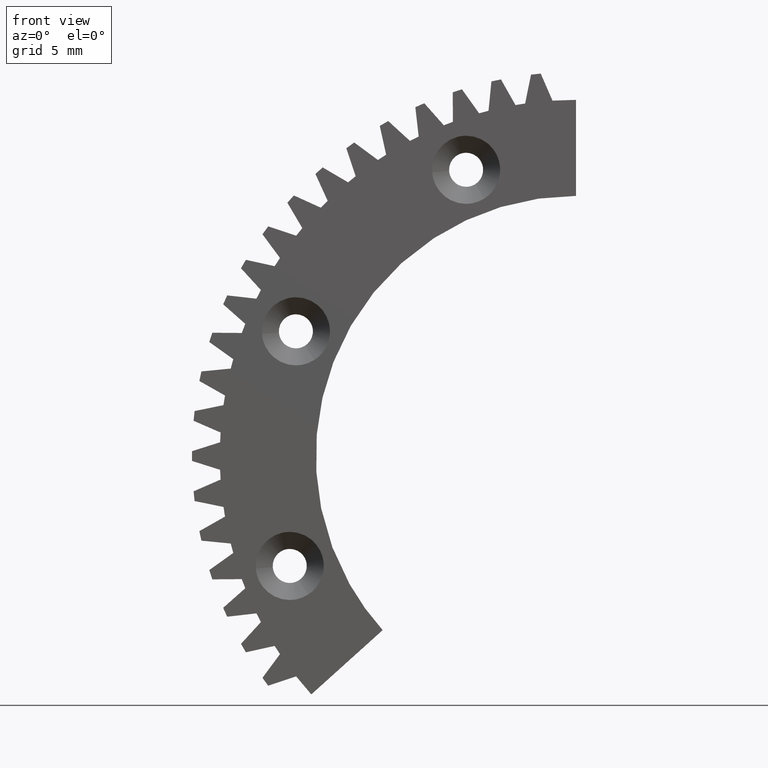
[diagram: clean part render]
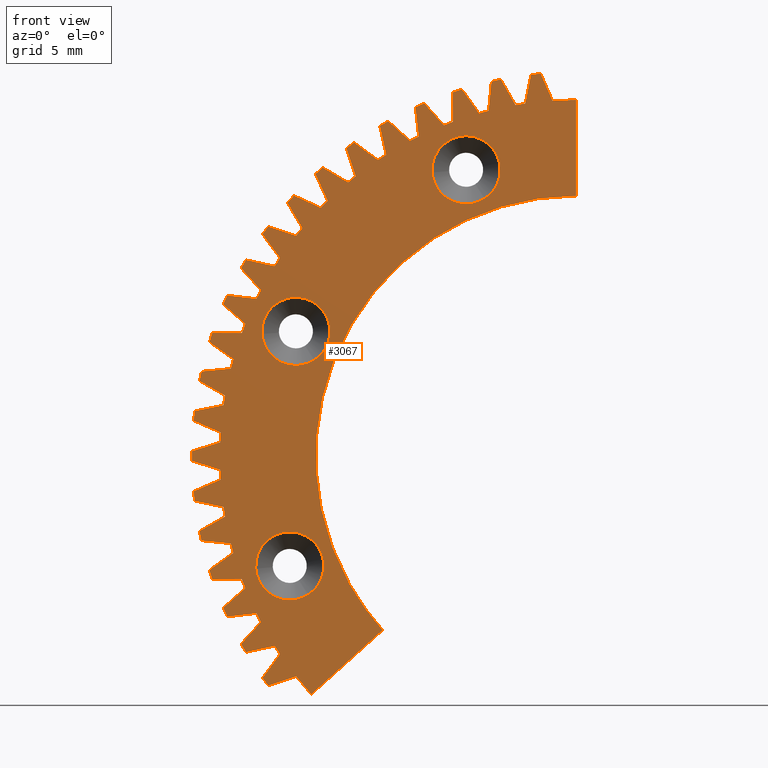
[diagram: same view with one face highlighted and labeled with its STEP entity id]
A machine part, front view. The second image highlights one B-rep face of the part: STEP entity #3067.
In plain terms, the highlighted face is a freeform B-spline surface patch.
Its self-contained STEP definition (entity closure, byte-faithful):
#85=CARTESIAN_POINT('',(-17.301544010435251,-3.000000000001895,-28.750436031383401));
#86=VERTEX_POINT('',#85);
#92=CARTESIAN_POINT('',(-18.484815756047350,-3.0,-24.695747923898900));
#93=VERTEX_POINT('',#92);
#94=CARTESIAN_POINT('',(-18.484815756047350,-3.0,-24.695747923898900));
#95=CARTESIAN_POINT('',(-16.284815756047355,-3.0,-24.695747923898892));
#96=CARTESIAN_POINT('',(-16.284815756047351,-3.0,-26.895747923898899));
#97=CARTESIAN_POINT('',(-16.284815756047347,-3.000000000000000,-28.101773967085858));
#98=CARTESIAN_POINT('',(-17.301544010435251,-3.000000000001895,-28.750436031383398));
#106=(BOUNDED_CURVE()B_SPLINE_CURVE(2,(#94,#95,#96,#97,#98),.UNSPECIFIED.,.F.,.U.)B_SPLINE_CURVE_WITH_KNOTS((3,2,3),(0.0,0.250000000000000,0.407950112622724),.UNSPECIFIED.)CURVE()GEOMETRIC_REPRESENTATION_ITEM()RATIONAL_B_SPLINE_CURVE((1.0,0.707106781186548,1.0,0.814949932407933,0.863729296951943))REPRESENTATION_ITEM(''));
#107=EDGE_CURVE('',#93,#86,#106,.T.);
#109=CARTESIAN_POINT('',(-20.678033890272040,-3.000000000029468,-27.068357934725690));
#110=VERTEX_POINT('',#109);
#111=CARTESIAN_POINT('',(-20.678033890272051,-3.000000000029467,-27.068357934725690));
#112=CARTESIAN_POINT('',(-20.684815756047357,-3.000000000000001,-26.982186159540024));
#113=CARTESIAN_POINT('',(-20.684815756047350,-3.0,-26.895747923898899));
#114=CARTESIAN_POINT('',(-20.684815756047357,-3.0,-24.695747923898892));
#115=CARTESIAN_POINT('',(-18.484815756047350,-3.0,-24.695747923898900));
#123=(BOUNDED_CURVE()B_SPLINE_CURVE(2,(#111,#112,#113,#114,#115),.UNSPECIFIED.,.F.,.U.)B_SPLINE_CURVE_WITH_KNOTS((3,2,3),(0.736331300597873,0.750000000000000,1.0),.UNSPECIFIED.)CURVE()GEOMETRIC_REPRESENTATION_ITEM()RATIONAL_B_SPLINE_CURVE((0.969723356098994,0.983986122540469,1.0,0.707106781186548,1.0))REPRESENTATION_ITEM(''));
#124=EDGE_CURVE('',#110,#93,#123,.T.);
#228=CARTESIAN_POINT('',(-18.484815756047350,-3.0,-29.095747923898902));
#229=VERTEX_POINT('',#228);
#230=CARTESIAN_POINT('',(-18.484815756047350,-3.0,-29.095747923898902));
#231=CARTESIAN_POINT('',(-20.518474837280163,-3.000000000000000,-29.095747923898902));
#232=CARTESIAN_POINT('',(-20.678033890272040,-3.000000000029467,-27.068357934725693));
#240=(BOUNDED_CURVE()B_SPLINE_CURVE(2,(#230,#231,#232),.UNSPECIFIED.,.F.,.U.)B_SPLINE_CURVE_WITH_KNOTS((3,3),(0.500000000000000,0.736331300597872),.UNSPECIFIED.)CURVE()GEOMETRIC_REPRESENTATION_ITEM()RATIONAL_B_SPLINE_CURVE((1.0,0.723120658646079,0.969723356098992))REPRESENTATION_ITEM(''));
#241=EDGE_CURVE('',#229,#110,#240,.T.);
#243=CARTESIAN_POINT('',(-17.301544010435251,-3.000000000001895,-28.750436031383398));
#244=CARTESIAN_POINT('',(-17.842794034175078,-3.0,-29.095747923898909));
#245=CARTESIAN_POINT('',(-18.484815756047350,-3.0,-29.095747923898902));
#253=(BOUNDED_CURVE()B_SPLINE_CURVE(2,(#243,#244,#245),.UNSPECIFIED.,.F.,.U.)B_SPLINE_CURVE_WITH_KNOTS((3,3),(0.407950112622724,0.500000000000000),.UNSPECIFIED.)CURVE()GEOMETRIC_REPRESENTATION_ITEM()RATIONAL_B_SPLINE_CURVE((0.863729296951943,0.892156848778615,1.0))REPRESENTATION_ITEM(''));
#254=EDGE_CURVE('',#86,#229,#253,.T.);
#429=CARTESIAN_POINT('',(-16.904899751990499,-3.000000000001896,-13.601354235410760));
#430=VERTEX_POINT('',#429);
#436=CARTESIAN_POINT('',(-18.088171497602598,-3.0,-9.546666127926260));
#437=VERTEX_POINT('',#436);
#438=CARTESIAN_POINT('',(-18.088171497602598,-3.0,-9.546666127926260));
#439=CARTESIAN_POINT('',(-15.888171497602595,-3.0,-9.546666127926260));
#440=CARTESIAN_POINT('',(-15.888171497602601,-3.0,-11.746666127926259));
#441=CARTESIAN_POINT('',(-15.888171497602601,-3.000000000000000,-12.952692171113224));
#442=CARTESIAN_POINT('',(-16.904899751990499,-3.000000000001897,-13.601354235410756));
#450=(BOUNDED_CURVE()B_SPLINE_CURVE(2,(#438,#439,#440,#441,#442),.UNSPECIFIED.,.F.,.U.)B_SPLINE_CURVE_WITH_KNOTS((3,2,3),(0.0,0.250000000000000,0.407950112622724),.UNSPECIFIED.)CURVE()GEOMETRIC_REPRESENTATION_ITEM()RATIONAL_B_SPLINE_CURVE((1.0,0.707106781186548,1.0,0.814949932407933,0.863729296951943))REPRESENTATION_ITEM(''));
#451=EDGE_CURVE('',#437,#430,#450,.T.);
#453=CARTESIAN_POINT('',(-20.281389631827292,-3.000000000029469,-11.919276138753050));
#454=VERTEX_POINT('',#453);
#455=CARTESIAN_POINT('',(-20.281389631827285,-3.000000000029469,-11.919276138753052));
#456=CARTESIAN_POINT('',(-20.288171497602601,-3.000000000000000,-11.833104363567392));
#457=CARTESIAN_POINT('',(-20.288171497602601,-3.0,-11.746666127926259));
#458=CARTESIAN_POINT('',(-20.288171497602598,-3.0,-9.546666127926260));
#459=CARTESIAN_POINT('',(-18.088171497602598,-3.0,-9.546666127926260));
#467=(BOUNDED_CURVE()B_SPLINE_CURVE(2,(#455,#456,#457,#458,#459),.UNSPECIFIED.,.F.,.U.)B_SPLINE_CURVE_WITH_KNOTS((3,2,3),(0.736331300597873,0.750000000000000,1.0),.UNSPECIFIED.)CURVE()GEOMETRIC_REPRESENTATION_ITEM()RATIONAL_B_SPLINE_CURVE((0.969723356098994,0.983986122540470,1.0,0.707106781186548,1.0))REPRESENTATION_ITEM(''));
#468=EDGE_CURVE('',#454,#437,#467,.T.);
#572=CARTESIAN_POINT('',(-18.088171497602598,-3.0,-13.946666127926260));
#573=VERTEX_POINT('',#572);
#574=CARTESIAN_POINT('',(-18.088171497602598,-3.0,-13.946666127926260));
#575=CARTESIAN_POINT('',(-20.121830578835404,-3.000000000000000,-13.946666127926262));
#576=CARTESIAN_POINT('',(-20.281389631827292,-3.000000000029468,-11.919276138753048));
#584=(BOUNDED_CURVE()B_SPLINE_CURVE(2,(#574,#575,#576),.UNSPECIFIED.,.F.,.U.)B_SPLINE_CURVE_WITH_KNOTS((3,3),(0.500000000000000,0.736331300597872),.UNSPECIFIED.)CURVE()GEOMETRIC_REPRESENTATION_ITEM()RATIONAL_B_SPLINE_CURVE((1.0,0.723120658646079,0.969723356098992))REPRESENTATION_ITEM(''));
#585=EDGE_CURVE('',#573,#454,#584,.T.);
#587=CARTESIAN_POINT('',(-16.904899751990499,-3.000000000001897,-13.601354235410756));
#588=CARTESIAN_POINT('',(-17.446149775730326,-3.000000000000001,-13.946666127926269));
#589=CARTESIAN_POINT('',(-18.088171497602598,-3.0,-13.946666127926260));
#597=(BOUNDED_CURVE()B_SPLINE_CURVE(2,(#587,#588,#589),.UNSPECIFIED.,.F.,.U.)B_SPLINE_CURVE_WITH_KNOTS((3,3),(0.407950112622724,0.500000000000000),.UNSPECIFIED.)CURVE()GEOMETRIC_REPRESENTATION_ITEM()RATIONAL_B_SPLINE_CURVE((0.863729296951943,0.892156848778615,1.0))REPRESENTATION_ITEM(''));
#598=EDGE_CURVE('',#430,#573,#597,.T.);
#773=CARTESIAN_POINT('',(-5.912411440443520,-3.000000000001896,-3.169805613593854));
#774=VERTEX_POINT('',#773);
#780=CARTESIAN_POINT('',(-7.095683186055621,-3.0,0.884882493890644));
#781=VERTEX_POINT('',#780);
#782=CARTESIAN_POINT('',(-7.095683186055621,-3.0,0.884882493890644));
#783=CARTESIAN_POINT('',(-4.895683186055620,-3.0,0.884882493890644));
#784=CARTESIAN_POINT('',(-4.895683186055620,-3.0,-1.315117506109356));
#785=CARTESIAN_POINT('',(-4.895683186055621,-3.000000000000000,-2.521143549296317));
#786=CARTESIAN_POINT('',(-5.912411440443520,-3.000000000001897,-3.169805613593855));
#794=(BOUNDED_CURVE()B_SPLINE_CURVE(2,(#782,#783,#784,#785,#786),.UNSPECIFIED.,.F.,.U.)B_SPLINE_CURVE_WITH_KNOTS((3,2,3),(0.0,0.250000000000000,0.407950112622724),.UNSPECIFIED.)CURVE()GEOMETRIC_REPRESENTATION_ITEM()RATIONAL_B_SPLINE_CURVE((1.0,0.707106781186548,1.0,0.814949932407933,0.863729296951943))REPRESENTATION_ITEM(''));
#795=EDGE_CURVE('',#781,#774,#794,.T.);
#797=CARTESIAN_POINT('',(-9.288901320280310,-3.000000000029469,-1.487727516936148));
#798=VERTEX_POINT('',#797);
#799=CARTESIAN_POINT('',(-9.288901320280310,-3.000000000029469,-1.487727516936148));
#800=CARTESIAN_POINT('',(-9.295683186055621,-3.0,-1.401555741750485));
#801=CARTESIAN_POINT('',(-9.295683186055621,-3.0,-1.315117506109356));
#802=CARTESIAN_POINT('',(-9.295683186055621,-3.0,0.884882493890644));
#803=CARTESIAN_POINT('',(-7.095683186055621,-3.0,0.884882493890644));
#811=(BOUNDED_CURVE()B_SPLINE_CURVE(2,(#799,#800,#801,#802,#803),.UNSPECIFIED.,.F.,.U.)B_SPLINE_CURVE_WITH_KNOTS((3,2,3),(0.736331300597873,0.750000000000000,1.0),.UNSPECIFIED.)CURVE()GEOMETRIC_REPRESENTATION_ITEM()RATIONAL_B_SPLINE_CURVE((0.969723356098994,0.983986122540470,1.0,0.707106781186548,1.0))REPRESENTATION_ITEM(''));
#812=EDGE_CURVE('',#798,#781,#811,.T.);
#916=CARTESIAN_POINT('',(-7.095683186055621,-3.0,-3.515117506109356));
#917=VERTEX_POINT('',#916);
#918=CARTESIAN_POINT('',(-7.095683186055621,-3.0,-3.515117506109356));
#919=CARTESIAN_POINT('',(-9.129342267288426,-3.000000000000000,-3.515117506109356));
#920=CARTESIAN_POINT('',(-9.288901320280310,-3.000000000029468,-1.487727516936148));
#928=(BOUNDED_CURVE()B_SPLINE_CURVE(2,(#918,#919,#920),.UNSPECIFIED.,.F.,.U.)B_SPLINE_CURVE_WITH_KNOTS((3,3),(0.500000000000000,0.736331300597872),.UNSPECIFIED.)CURVE()GEOMETRIC_REPRESENTATION_ITEM()RATIONAL_B_SPLINE_CURVE((1.0,0.723120658646079,0.969723356098992))REPRESENTATION_ITEM(''));
#929=EDGE_CURVE('',#917,#798,#928,.T.);
#931=CARTESIAN_POINT('',(-5.912411440443520,-3.000000000001897,-3.169805613593855));
#932=CARTESIAN_POINT('',(-6.453661464183351,-3.000000000000000,-3.515117506109357));
#933=CARTESIAN_POINT('',(-7.095683186055621,-3.0,-3.515117506109356));
#941=(BOUNDED_CURVE()B_SPLINE_CURVE(2,(#931,#932,#933),.UNSPECIFIED.,.F.,.U.)B_SPLINE_CURVE_WITH_KNOTS((3,3),(0.407950112622724,0.500000000000000),.UNSPECIFIED.)CURVE()GEOMETRIC_REPRESENTATION_ITEM()RATIONAL_B_SPLINE_CURVE((0.863729296951943,0.892156848778615,1.0))REPRESENTATION_ITEM(''));
#942=EDGE_CURVE('',#774,#917,#941,.T.);
#2072=CARTESIAN_POINT('',(-26.038757181996029,-3.0,6.897333916763474));
#2073=CARTESIAN_POINT('',(1.238760485344445,-3.0,6.897333916763474));
#2074=CARTESIAN_POINT('',(-26.038757181996029,-3.0,-37.192251966026468));
#2075=CARTESIAN_POINT('',(1.238760485344445,-3.0,-37.192251966026468));
#2076=B_SPLINE_SURFACE_WITH_KNOTS('',1,1,((#2072,#2074),(#2073,#2075)),.UNSPECIFIED.,.F.,.F.,.U.,(2,2),(2,2),(0.0,27.277517667340469),(0.0,44.089585882789940),.UNSPECIFIED.);
#2077=CARTESIAN_POINT('',(-17.092330180161351,-3.0,-35.190003841206057));
#2078=VERTEX_POINT('',#2077);
#2079=CARTESIAN_POINT('',(-12.484832521074720,-3.0,-31.041392299796801));
#2080=VERTEX_POINT('',#2079);
#2081=CARTESIAN_POINT('',(-17.092330180161351,-3.0,-35.190003841206057));
#2082=CARTESIAN_POINT('',(-12.484832521074720,-3.0,-31.041392299796801));
#2083=QUASI_UNIFORM_CURVE('',1,(#2081,#2082),.UNSPECIFIED.,.F.,.U.);
#2084=EDGE_CURVE('',#2078,#2080,#2083,.T.);
#2085=ORIENTED_EDGE('',*,*,#2084,.T.);
#2086=CARTESIAN_POINT('',(-0.000000879645893,-3.0,-3.0));
#2087=VERTEX_POINT('',#2086);
#2088=CARTESIAN_POINT('',(-0.000000879645893,-3.0,-3.0));
#2089=CARTESIAN_POINT('',(-10.910047379083419,-3.000000000000000,-3.000000571248718));
#2090=CARTESIAN_POINT('',(-15.347562894111640,-3.0,-12.966824070928711));
#2091=CARTESIAN_POINT('',(-19.785078409139871,-3.000000000000000,-22.933647570608706));
#2092=CARTESIAN_POINT('',(-12.484832521074710,-3.0,-31.041392299796790));
#2100=(BOUNDED_CURVE()B_SPLINE_CURVE(2,(#2088,#2089,#2090,#2091,#2092),.UNSPECIFIED.,.F.,.U.)B_SPLINE_CURVE_WITH_KNOTS((3,2,3),(0.0,0.500000000000000,1.0),.UNSPECIFIED.)CURVE()GEOMETRIC_REPRESENTATION_ITEM()RATIONAL_B_SPLINE_CURVE((1.0,0.838670577451168,1.0,0.838670577451168,1.0))REPRESENTATION_ITEM(''));
#2101=EDGE_CURVE('',#2087,#2080,#2100,.T.);
#2102=ORIENTED_EDGE('',*,*,#2101,.F.);
#2103=CARTESIAN_POINT('',(0.0,-3.0,3.200000999999900));
#2104=VERTEX_POINT('',#2103);
#2105=CARTESIAN_POINT('',(-0.000000879645893,-3.0,-3.0));
#2106=CARTESIAN_POINT('',(0.0,-3.0,3.200000999999900));
#2107=QUASI_UNIFORM_CURVE('',1,(#2105,#2106),.UNSPECIFIED.,.F.,.U.);
#2108=EDGE_CURVE('',#2087,#2104,#2107,.T.);
#2109=ORIENTED_EDGE('',*,*,#2108,.T.);
#2110=CARTESIAN_POINT('',(-1.518172678718585,-3.0,3.149844262843850));
#2111=VERTEX_POINT('',#2110);
#2112=CARTESIAN_POINT('',(0.0,-3.0,3.200000999999900));
#2113=CARTESIAN_POINT('',(-0.759914978271767,-2.999999999999999,3.200002671037833));
#2114=CARTESIAN_POINT('',(-1.518172678718585,-3.0,3.149844262843850));
#2122=(BOUNDED_CURVE()B_SPLINE_CURVE(2,(#2112,#2113,#2114),.UNSPECIFIED.,.F.,.U.)CURVE()GEOMETRIC_REPRESENTATION_ITEM()QUASI_UNIFORM_CURVE()RATIONAL_B_SPLINE_CURVE((1.0,0.999454633034916,1.0))REPRESENTATION_ITEM(''));
#2123=EDGE_CURVE('',#2104,#2111,#2122,.T.);
#2124=ORIENTED_EDGE('',*,*,#2123,.T.);
#2125=CARTESIAN_POINT('',(-2.278816000000000,-3.0,4.895084000000000));
#2126=VERTEX_POINT('',#2125);
#2127=CARTESIAN_POINT('',(-1.518172678718585,-3.0,3.149844262843850));
#2128=CARTESIAN_POINT('',(-2.278816000000000,-3.0,4.895084000000000));
#2129=QUASI_UNIFORM_CURVE('',1,(#2127,#2128),.UNSPECIFIED.,.F.,.U.);
#2130=EDGE_CURVE('',#2111,#2126,#2129,.T.);
#2131=ORIENTED_EDGE('',*,*,#2130,.T.);
#2132=CARTESIAN_POINT('',(-2.905370027013145,-3.0,4.829227041557510));
#2133=VERTEX_POINT('',#2132);
#2134=CARTESIAN_POINT('',(-2.278816000000000,-3.0,4.895084000000000));
#2135=CARTESIAN_POINT('',(-2.592511273282207,-3.000000000000000,4.866135002640122));
#2136=CARTESIAN_POINT('',(-2.905370027013145,-3.0,4.829227041557510));
#2144=(BOUNDED_CURVE()B_SPLINE_CURVE(2,(#2134,#2135,#2136),.UNSPECIFIED.,.F.,.U.)CURVE()GEOMETRIC_REPRESENTATION_ITEM()QUASI_UNIFORM_CURVE()RATIONAL_B_SPLINE_CURVE((1.0,0.999919329825547,1.0))REPRESENTATION_ITEM(''));
#2145=EDGE_CURVE('',#2126,#2133,#2144,.T.);
#2146=ORIENTED_EDGE('',*,*,#2145,.T.);
#2147=CARTESIAN_POINT('',(-3.286529000000100,-3.0,2.963984999999895));
#2148=VERTEX_POINT('',#2147);
#2149=CARTESIAN_POINT('',(-2.905370027013145,-3.0,4.829227041557510));
#2150=CARTESIAN_POINT('',(-3.286529000000100,-3.0,2.963984999999895));
#2151=QUASI_UNIFORM_CURVE('',1,(#2149,#2150),.UNSPECIFIED.,.F.,.U.);
#2152=EDGE_CURVE('',#2133,#2148,#2151,.T.);
#2153=ORIENTED_EDGE('',*,*,#2152,.T.);
#2154=CARTESIAN_POINT('',(-3.908776830472340,-3.0,2.865425410091300));
#2155=VERTEX_POINT('',#2154);
#2156=CARTESIAN_POINT('',(-3.286529000000100,-3.0,2.963984999999895));
#2157=CARTESIAN_POINT('',(-3.598327867375162,-3.0,2.918966688406221));
#2158=CARTESIAN_POINT('',(-3.908776830472340,-3.0,2.865425410091300));
#2166=(BOUNDED_CURVE()B_SPLINE_CURVE(2,(#2156,#2157,#2158),.UNSPECIFIED.,.F.,.U.)CURVE()GEOMETRIC_REPRESENTATION_ITEM()QUASI_UNIFORM_CURVE()RATIONAL_B_SPLINE_CURVE((1.0,0.999906208676956,1.0))REPRESENTATION_ITEM(''));
#2167=EDGE_CURVE('',#2148,#2155,#2166,.T.);
#2168=ORIENTED_EDGE('',*,*,#2167,.T.);
#2169=CARTESIAN_POINT('',(-4.847678999999999,-3.0,4.521602999999900));
#2170=VERTEX_POINT('',#2169);
#2171=CARTESIAN_POINT('',(-3.908776830472340,-3.0,2.865425410091300));
#2172=CARTESIAN_POINT('',(-4.847678999999999,-3.0,4.521602999999900));
#2173=QUASI_UNIFORM_CURVE('',1,(#2171,#2172),.UNSPECIFIED.,.F.,.U.);
#2174=EDGE_CURVE('',#2155,#2170,#2173,.T.);
#2175=ORIENTED_EDGE('',*,*,#2174,.T.);
#2176=CARTESIAN_POINT('',(-5.463905828355620,-3.0,4.390612474265436));
#2177=VERTEX_POINT('',#2176);
#2178=CARTESIAN_POINT('',(-4.847678999999999,-3.0,4.521602999999900));
#2179=CARTESIAN_POINT('',(-5.156624324557128,-3.000000000000000,4.460021569410868));
#2180=CARTESIAN_POINT('',(-5.463905828355620,-3.0,4.390612474265436));
#2188=(BOUNDED_CURVE()B_SPLINE_CURVE(2,(#2178,#2179,#2180),.UNSPECIFIED.,.F.,.U.)CURVE()GEOMETRIC_REPRESENTATION_ITEM()QUASI_UNIFORM_CURVE()RATIONAL_B_SPLINE_CURVE((1.0,0.999919332493654,1.0))REPRESENTATION_ITEM(''));
#2189=EDGE_CURVE('',#2170,#2177,#2188,.T.);
#2190=ORIENTED_EDGE('',*,*,#2189,.T.);
#2191=CARTESIAN_POINT('',(-5.648009999999901,-3.0,2.495746000000000));
#2192=VERTEX_POINT('',#2191);
#2193=CARTESIAN_POINT('',(-5.463905828355620,-3.0,4.390612474265436));
#2194=CARTESIAN_POINT('',(-5.648009999999901,-3.0,2.495746000000000));
#2195=QUASI_UNIFORM_CURVE('',1,(#2193,#2194),.UNSPECIFIED.,.F.,.U.);
#2196=EDGE_CURVE('',#2177,#2192,#2195,.T.);
#2197=ORIENTED_EDGE('',*,*,#2196,.T.);
#2198=CARTESIAN_POINT('',(-6.256534852165981,-3.0,2.332686594921200));
#2199=VERTEX_POINT('',#2198);
#2200=CARTESIAN_POINT('',(-5.648009999999901,-3.0,2.495746000000000));
#2201=CARTESIAN_POINT('',(-5.953389082454080,-3.000000000000000,2.418383721781395));
#2202=CARTESIAN_POINT('',(-6.256534852165981,-3.0,2.332686594921200));
#2210=(BOUNDED_CURVE()B_SPLINE_CURVE(2,(#2200,#2201,#2202),.UNSPECIFIED.,.F.,.U.)CURVE()GEOMETRIC_REPRESENTATION_ITEM()QUASI_UNIFORM_CURVE()RATIONAL_B_SPLINE_CURVE((1.0,0.999906212339426,1.0))REPRESENTATION_ITEM(''));
#2211=EDGE_CURVE('',#2192,#2199,#2210,.T.);
#2212=ORIENTED_EDGE('',*,*,#2211,.T.);
#2213=CARTESIAN_POINT('',(-7.363407010828680,-3.0,3.881643417553730));
#2214=VERTEX_POINT('',#2213);
#2215=CARTESIAN_POINT('',(-6.256534852165981,-3.0,2.332686594921200));
#2216=CARTESIAN_POINT('',(-7.363407010828680,-3.0,3.881643417553730));
#2217=QUASI_UNIFORM_CURVE('',1,(#2215,#2216),.UNSPECIFIED.,.F.,.U.);
#2218=EDGE_CURVE('',#2199,#2214,#2217,.T.);
#2219=ORIENTED_EDGE('',*,*,#2218,.T.);
#2220=CARTESIAN_POINT('',(-7.962584750999750,-3.0,3.686958965712530));
#2221=VERTEX_POINT('',#2220);
#2222=CARTESIAN_POINT('',(-7.363407010828684,-3.0,3.881643417553728));
#2223=CARTESIAN_POINT('',(-7.664232408911256,-3.000000000000000,3.788106837352912));
#2224=CARTESIAN_POINT('',(-7.962584750999754,-3.0,3.686958965712532));
#2232=(BOUNDED_CURVE()B_SPLINE_CURVE(2,(#2222,#2223,#2224),.UNSPECIFIED.,.F.,.U.)CURVE()GEOMETRIC_REPRESENTATION_ITEM()QUASI_UNIFORM_CURVE()RATIONAL_B_SPLINE_CURVE((1.0,0.999919328002495,1.0))REPRESENTATION_ITEM(''));
#2233=EDGE_CURVE('',#2214,#2221,#2232,.T.);
#2234=ORIENTED_EDGE('',*,*,#2233,.T.);
#2235=CARTESIAN_POINT('',(-7.947608999999900,-3.0,1.783230000000000));
#2236=VERTEX_POINT('',#2235);
#2237=CARTESIAN_POINT('',(-7.962584750999750,-3.0,3.686958965712530));
#2238=CARTESIAN_POINT('',(-7.947608999999900,-3.0,1.783230000000000));
#2239=QUASI_UNIFORM_CURVE('',1,(#2237,#2238),.UNSPECIFIED.,.F.,.U.);
#2240=EDGE_CURVE('',#2221,#2236,#2239,.T.);
#2241=ORIENTED_EDGE('',*,*,#2240,.T.);
#2242=CARTESIAN_POINT('',(-8.535767390734611,-3.0,1.557451106491455));
#2243=VERTEX_POINT('',#2242);
#2244=CARTESIAN_POINT('',(-7.947608999999900,-3.0,1.783230000000000));
#2245=CARTESIAN_POINT('',(-8.243234410537403,-3.000000000000000,1.674368582912931));
#2246=CARTESIAN_POINT('',(-8.535767390734611,-3.0,1.557451106491455));
#2254=(BOUNDED_CURVE()B_SPLINE_CURVE(2,(#2244,#2245,#2246),.UNSPECIFIED.,.F.,.U.)CURVE()GEOMETRIC_REPRESENTATION_ITEM()QUASI_UNIFORM_CURVE()RATIONAL_B_SPLINE_CURVE((1.0,0.999906208668064,1.0))REPRESENTATION_ITEM(''));
#2255=EDGE_CURVE('',#2236,#2243,#2254,.T.);
#2256=ORIENTED_EDGE('',*,*,#2255,.T.);
#2257=CARTESIAN_POINT('',(-9.798492000000001,-3.0,2.982226999999895));
#2258=VERTEX_POINT('',#2257);
#2259=CARTESIAN_POINT('',(-8.535767390734611,-3.0,1.557451106491455));
#2260=CARTESIAN_POINT('',(-9.798492000000001,-3.0,2.982226999999895));
#2261=QUASI_UNIFORM_CURVE('',1,(#2259,#2260),.UNSPECIFIED.,.F.,.U.);
#2262=EDGE_CURVE('',#2243,#2258,#2261,.T.);
#2263=ORIENTED_EDGE('',*,*,#2262,.T.);
#2264=CARTESIAN_POINT('',(-10.374020894735200,-3.0,2.725978023774100));
#2265=VERTEX_POINT('',#2264);
#2266=CARTESIAN_POINT('',(-9.798492000000001,-3.0,2.982226999999895));
#2267=CARTESIAN_POINT('',(-10.087883922867439,-3.0,2.857757881469734));
#2268=CARTESIAN_POINT('',(-10.374020894735200,-3.0,2.725978023774100));
#2276=(BOUNDED_CURVE()B_SPLINE_CURVE(2,(#2266,#2267,#2268),.UNSPECIFIED.,.F.,.U.)CURVE()GEOMETRIC_REPRESENTATION_ITEM()QUASI_UNIFORM_CURVE()RATIONAL_B_SPLINE_CURVE((1.0,0.999919331875687,1.0))REPRESENTATION_ITEM(''));
#2277=EDGE_CURVE('',#2258,#2265,#2276,.T.);
#2278=ORIENTED_EDGE('',*,*,#2277,.T.);
#2279=CARTESIAN_POINT('',(-10.160132999999901,-3.0,0.834240000000000));
#2280=VERTEX_POINT('',#2279);
#2281=CARTESIAN_POINT('',(-10.374020894735200,-3.0,2.725978023774100));
#2282=CARTESIAN_POINT('',(-10.160132999999901,-3.0,0.834240000000000));
#2283=QUASI_UNIFORM_CURVE('',1,(#2281,#2282),.UNSPECIFIED.,.F.,.U.);
#2284=EDGE_CURVE('',#2265,#2280,#2283,.T.);
#2285=ORIENTED_EDGE('',*,*,#2284,.T.);
#2286=CARTESIAN_POINT('',(-10.721469002803220,-3.0,0.548222111977573));
#2287=VERTEX_POINT('',#2286);
#2288=CARTESIAN_POINT('',(-10.160132999999901,-3.0,0.834240000000000));
#2289=CARTESIAN_POINT('',(-10.442759780216818,-3.000000000000000,0.695075376673241));
#2290=CARTESIAN_POINT('',(-10.721469002803220,-3.0,0.548222111977573));
#2298=(BOUNDED_CURVE()B_SPLINE_CURVE(2,(#2288,#2289,#2290),.UNSPECIFIED.,.F.,.U.)CURVE()GEOMETRIC_REPRESENTATION_ITEM()QUASI_UNIFORM_CURVE()RATIONAL_B_SPLINE_CURVE((1.0,0.999906209142598,1.0))REPRESENTATION_ITEM(''));
#2299=EDGE_CURVE('',#2280,#2287,#2298,.T.);
#2300=ORIENTED_EDGE('',*,*,#2299,.T.);
#2301=CARTESIAN_POINT('',(-12.126190186315240,-3.0,1.833203767165865));
#2302=VERTEX_POINT('',#2301);
#2303=CARTESIAN_POINT('',(-10.721469002803220,-3.0,0.548222111977573));
#2304=CARTESIAN_POINT('',(-12.126190186315240,-3.0,1.833203767165865));
#2305=QUASI_UNIFORM_CURVE('',1,(#2303,#2304),.UNSPECIFIED.,.F.,.U.);
#2306=EDGE_CURVE('',#2287,#2302,#2305,.T.);
#2307=ORIENTED_EDGE('',*,*,#2306,.T.);
#2308=CARTESIAN_POINT('',(-12.671799289228700,-3.0,1.518196354520600));
#2309=VERTEX_POINT('',#2308);
#2310=CARTESIAN_POINT('',(-12.126190186315240,-3.0,1.833203767165868));
#2311=CARTESIAN_POINT('',(-12.400995498158629,-3.000000000000000,1.679165481134528));
#2312=CARTESIAN_POINT('',(-12.671799289228710,-3.0,1.518196354520603));
#2320=(BOUNDED_CURVE()B_SPLINE_CURVE(2,(#2310,#2311,#2312),.UNSPECIFIED.,.F.,.U.)CURVE()GEOMETRIC_REPRESENTATION_ITEM()QUASI_UNIFORM_CURVE()RATIONAL_B_SPLINE_CURVE((1.0,0.999919327400230,1.0))REPRESENTATION_ITEM(''));
#2321=EDGE_CURVE('',#2302,#2309,#2320,.T.);
#2322=ORIENTED_EDGE('',*,*,#2321,.T.);
#2323=CARTESIAN_POINT('',(-12.261343999999880,-3.0,-0.340824000000012));
#2324=VERTEX_POINT('',#2323);
#2325=CARTESIAN_POINT('',(-12.671799289228700,-3.0,1.518196354520600));
#2326=CARTESIAN_POINT('',(-12.261343999999880,-3.0,-0.340824000000012));
#2327=QUASI_UNIFORM_CURVE('',1,(#2325,#2326),.UNSPECIFIED.,.F.,.U.);
#2328=EDGE_CURVE('',#2309,#2324,#2327,.T.);
#2329=ORIENTED_EDGE('',*,*,#2328,.T.);
#2330=CARTESIAN_POINT('',(-12.789695526722459,-3.0,-0.683940610945644));
#2331=VERTEX_POINT('',#2330);
#2332=CARTESIAN_POINT('',(-12.261343999999880,-3.0,-0.340824000000012));
#2333=CARTESIAN_POINT('',(-12.527869534131243,-2.999999999999999,-0.508763974356993));
#2334=CARTESIAN_POINT('',(-12.789695526722459,-3.0,-0.683940610945644));
#2342=(BOUNDED_CURVE()B_SPLINE_CURVE(2,(#2332,#2333,#2334),.UNSPECIFIED.,.F.,.U.)CURVE()GEOMETRIC_REPRESENTATION_ITEM()QUASI_UNIFORM_CURVE()RATIONAL_B_SPLINE_CURVE((1.0,0.999906213861449,1.0))REPRESENTATION_ITEM(''));
#2343=EDGE_CURVE('',#2324,#2331,#2342,.T.);
#2344=ORIENTED_EDGE('',*,*,#2343,.T.);
#2345=CARTESIAN_POINT('',(-14.321045367931420,-3.0,0.447164010398539));
#2346=VERTEX_POINT('',#2345);
#2347=CARTESIAN_POINT('',(-12.789695526722459,-3.0,-0.683940610945644));
#2348=CARTESIAN_POINT('',(-14.321045367931420,-3.0,0.447164010398539));
#2349=QUASI_UNIFORM_CURVE('',1,(#2347,#2348),.UNSPECIFIED.,.F.,.U.);
#2350=EDGE_CURVE('',#2331,#2346,#2349,.T.);
#2351=ORIENTED_EDGE('',*,*,#2350,.T.);
#2352=CARTESIAN_POINT('',(-14.830737428934880,-3.0,0.076851296613675));
#2353=VERTEX_POINT('',#2352);
#2354=CARTESIAN_POINT('',(-14.321045367931420,-3.0,0.447164010398550));
#2355=CARTESIAN_POINT('',(-14.578243424498639,-3.000000000000000,0.265244941798606));
#2356=CARTESIAN_POINT('',(-14.830737428934890,-3.0,0.076851296613667));
#2364=(BOUNDED_CURVE()B_SPLINE_CURVE(2,(#2354,#2355,#2356),.UNSPECIFIED.,.F.,.U.)CURVE()GEOMETRIC_REPRESENTATION_ITEM()QUASI_UNIFORM_CURVE()RATIONAL_B_SPLINE_CURVE((1.0,0.999919327697015,1.0))REPRESENTATION_ITEM(''));
#2365=EDGE_CURVE('',#2346,#2353,#2364,.T.);
#2366=ORIENTED_EDGE('',*,*,#2365,.T.);
#2367=CARTESIAN_POINT('',(-14.228210000000001,-3.0,-1.729076000000105));
#2368=VERTEX_POINT('',#2367);
#2369=CARTESIAN_POINT('',(-14.830737428934880,-3.0,0.076851296613675));
#2370=CARTESIAN_POINT('',(-14.228210000000001,-3.0,-1.729076000000105));
#2371=QUASI_UNIFORM_CURVE('',1,(#2369,#2370),.UNSPECIFIED.,.F.,.U.);
#2372=EDGE_CURVE('',#2353,#2368,#2371,.T.);
#2373=ORIENTED_EDGE('',*,*,#2372,.T.);
#2374=CARTESIAN_POINT('',(-14.717812237958720,-3.0,-2.125554088541180));
#2375=VERTEX_POINT('',#2374);
#2376=CARTESIAN_POINT('',(-14.228210000000001,-3.0,-1.729076000000105));
#2377=CARTESIAN_POINT('',(-14.475726378755526,-3.000000000000000,-1.923961977013287));
#2378=CARTESIAN_POINT('',(-14.717812237958720,-3.0,-2.125554088541180));
#2386=(BOUNDED_CURVE()B_SPLINE_CURVE(2,(#2376,#2377,#2378),.UNSPECIFIED.,.F.,.U.)CURVE()GEOMETRIC_REPRESENTATION_ITEM()QUASI_UNIFORM_CURVE()RATIONAL_B_SPLINE_CURVE((1.0,0.999906208941801,1.0))REPRESENTATION_ITEM(''));
#2387=EDGE_CURVE('',#2368,#2375,#2386,.T.);
#2388=ORIENTED_EDGE('',*,*,#2387,.T.);
#2389=CARTESIAN_POINT('',(-16.359007999999950,-3.0,-1.160725000000000));
#2390=VERTEX_POINT('',#2389);
#2391=CARTESIAN_POINT('',(-14.717812237958720,-3.0,-2.125554088541180));
#2392=CARTESIAN_POINT('',(-16.359007999999950,-3.0,-1.160725000000000));
#2393=QUASI_UNIFORM_CURVE('',1,(#2391,#2392),.UNSPECIFIED.,.F.,.U.);
#2394=EDGE_CURVE('',#2375,#2390,#2393,.T.);
#2395=ORIENTED_EDGE('',*,*,#2394,.T.);
#2396=CARTESIAN_POINT('',(-16.827185061329700,-3.0,-1.582266064429675));
#2397=VERTEX_POINT('',#2396);
#2398=CARTESIAN_POINT('',(-16.359007999999950,-3.0,-1.160725000000000));
#2399=CARTESIAN_POINT('',(-16.595773853871943,-3.000000000000000,-1.368522063094337));
#2400=CARTESIAN_POINT('',(-16.827185061329700,-3.0,-1.582266064429675));
#2408=(BOUNDED_CURVE()B_SPLINE_CURVE(2,(#2398,#2399,#2400),.UNSPECIFIED.,.F.,.U.)CURVE()GEOMETRIC_REPRESENTATION_ITEM()QUASI_UNIFORM_CURVE()RATIONAL_B_SPLINE_CURVE((1.0,0.999919333954313,1.0))REPRESENTATION_ITEM(''));
#2409=EDGE_CURVE('',#2390,#2397,#2408,.T.);
#2410=ORIENTED_EDGE('',*,*,#2409,.T.);
#2411=CARTESIAN_POINT('',(-16.039183999999899,-3.0,-3.315327000000110));
#2412=VERTEX_POINT('',#2411);
#2413=CARTESIAN_POINT('',(-16.827185061329700,-3.0,-1.582266064429675));
#2414=CARTESIAN_POINT('',(-16.039183999999899,-3.0,-3.315327000000110));
#2415=QUASI_UNIFORM_CURVE('',1,(#2413,#2414),.UNSPECIFIED.,.F.,.U.);
#2416=EDGE_CURVE('',#2397,#2412,#2415,.T.);
#2417=ORIENTED_EDGE('',*,*,#2416,.T.);
#2418=CARTESIAN_POINT('',(-16.484667408652250,-3.0,-3.760805116699080));
#2419=VERTEX_POINT('',#2418);
#2420=CARTESIAN_POINT('',(-16.039183999999899,-3.0,-3.315327000000110));
#2421=CARTESIAN_POINT('',(-16.264976588958785,-3.0,-3.535015172352559));
#2422=CARTESIAN_POINT('',(-16.484667408652250,-3.0,-3.760805116699080));
#2430=(BOUNDED_CURVE()B_SPLINE_CURVE(2,(#2420,#2421,#2422),.UNSPECIFIED.,.F.,.U.)CURVE()GEOMETRIC_REPRESENTATION_ITEM()QUASI_UNIFORM_CURVE()RATIONAL_B_SPLINE_CURVE((1.0,0.999906208672959,1.0))REPRESENTATION_ITEM(''));
#2431=EDGE_CURVE('',#2412,#2419,#2430,.T.);
#2432=ORIENTED_EDGE('',*,*,#2431,.T.);
#2433=CARTESIAN_POINT('',(-18.217726999999901,-3.0,-2.972813000000000));
#2434=VERTEX_POINT('',#2433);
#2435=CARTESIAN_POINT('',(-16.484667408652250,-3.0,-3.760805116699080));
#2436=CARTESIAN_POINT('',(-18.217726999999901,-3.0,-2.972813000000000));
#2437=QUASI_UNIFORM_CURVE('',1,(#2435,#2436),.UNSPECIFIED.,.F.,.U.);
#2438=EDGE_CURVE('',#2419,#2434,#2437,.T.);
#2439=ORIENTED_EDGE('',*,*,#2438,.T.);
#2440=CARTESIAN_POINT('',(-18.639279942527249,-3.0,-3.440989444892405));
#2441=VERTEX_POINT('',#2440);
#2442=CARTESIAN_POINT('',(-18.217726999999901,-3.0,-2.972813000000000));
#2443=CARTESIAN_POINT('',(-18.431477010774632,-3.0,-3.204223835645651));
#2444=CARTESIAN_POINT('',(-18.639279942527249,-3.0,-3.440989444892405));
#2452=(BOUNDED_CURVE()B_SPLINE_CURVE(2,(#2442,#2443,#2444),.UNSPECIFIED.,.F.,.U.)CURVE()GEOMETRIC_REPRESENTATION_ITEM()QUASI_UNIFORM_CURVE()RATIONAL_B_SPLINE_CURVE((1.0,0.999919332041913,1.0))REPRESENTATION_ITEM(''));
#2453=EDGE_CURVE('',#2434,#2441,#2452,.T.);
#2454=ORIENTED_EDGE('',*,*,#2453,.T.);
#2455=CARTESIAN_POINT('',(-17.674445999999900,-3.0,-5.082180000000000));
#2456=VERTEX_POINT('',#2455);
#2457=CARTESIAN_POINT('',(-18.639279942527249,-3.0,-3.440989444892405));
#2458=CARTESIAN_POINT('',(-17.674445999999900,-3.0,-5.082180000000000));
#2459=QUASI_UNIFORM_CURVE('',1,(#2457,#2458),.UNSPECIFIED.,.F.,.U.);
#2460=EDGE_CURVE('',#2441,#2456,#2459,.T.);
#2461=ORIENTED_EDGE('',*,*,#2460,.T.);
#2462=CARTESIAN_POINT('',(-18.070916702745802,-3.0,-5.571788658483970));
#2463=VERTEX_POINT('',#2462);
#2464=CARTESIAN_POINT('',(-17.674445999999900,-3.0,-5.082180000000000));
#2465=CARTESIAN_POINT('',(-17.876034421693600,-3.000000000000000,-5.324269065939418));
#2466=CARTESIAN_POINT('',(-18.070916702745802,-3.0,-5.571788658483970));
#2474=(BOUNDED_CURVE()B_SPLINE_CURVE(2,(#2464,#2465,#2466),.UNSPECIFIED.,.F.,.U.)CURVE()GEOMETRIC_REPRESENTATION_ITEM()QUASI_UNIFORM_CURVE()RATIONAL_B_SPLINE_CURVE((1.0,0.999906208841811,1.0))REPRESENTATION_ITEM(''));
#2475=EDGE_CURVE('',#2456,#2463,#2474,.T.);
#2476=ORIENTED_EDGE('',*,*,#2475,.T.);
#2477=CARTESIAN_POINT('',(-19.876845999999901,-3.0,-4.969257000000001));
#2478=VERTEX_POINT('',#2477);
#2479=CARTESIAN_POINT('',(-18.070916702745802,-3.0,-5.571788658483970));
#2480=CARTESIAN_POINT('',(-19.876845999999901,-3.0,-4.969257000000001));
#2481=QUASI_UNIFORM_CURVE('',1,(#2479,#2480),.UNSPECIFIED.,.F.,.U.);
#2482=EDGE_CURVE('',#2463,#2478,#2481,.T.);
#2483=ORIENTED_EDGE('',*,*,#2482,.T.);
#2484=CARTESIAN_POINT('',(-20.247150786771101,-3.0,-5.478936350260760));
#2485=VERTEX_POINT('',#2484);
#2486=CARTESIAN_POINT('',(-19.876845999999901,-3.0,-4.969257000000001));
#2487=CARTESIAN_POINT('',(-20.065235811471354,-2.999999999999999,-5.221744546457548));
#2488=CARTESIAN_POINT('',(-20.247150786771080,-3.0,-5.478936350260764));
#2496=(BOUNDED_CURVE()B_SPLINE_CURVE(2,(#2486,#2487,#2488),.UNSPECIFIED.,.F.,.U.)CURVE()GEOMETRIC_REPRESENTATION_ITEM()QUASI_UNIFORM_CURVE()RATIONAL_B_SPLINE_CURVE((1.0,0.999919331521565,1.0))REPRESENTATION_ITEM(''));
#2497=EDGE_CURVE('',#2478,#2485,#2496,.T.);
#2498=ORIENTED_EDGE('',*,*,#2497,.T.);
#2499=CARTESIAN_POINT('',(-19.116050000000001,-3.0,-7.010288000000000));
#2500=VERTEX_POINT('',#2499);
#2501=CARTESIAN_POINT('',(-20.247150786771101,-3.0,-5.478936350260760));
#2502=CARTESIAN_POINT('',(-19.116050000000001,-3.0,-7.010288000000000));
#2503=QUASI_UNIFORM_CURVE('',1,(#2501,#2502),.UNSPECIFIED.,.F.,.U.);
#2504=EDGE_CURVE('',#2485,#2500,#2503,.T.);
#2505=ORIENTED_EDGE('',*,*,#2504,.T.);
#2506=CARTESIAN_POINT('',(-19.459173794298952,-3.0,-7.538655058846199));
#2507=VERTEX_POINT('',#2506);
#2508=CARTESIAN_POINT('',(-19.116050000000001,-3.0,-7.010288000000000));
#2509=CARTESIAN_POINT('',(-19.291230421843697,-3.000000000000000,-7.272121630915596));
#2510=CARTESIAN_POINT('',(-19.459173794298952,-3.0,-7.538655058846199));
#2518=(BOUNDED_CURVE()B_SPLINE_CURVE(2,(#2508,#2509,#2510),.UNSPECIFIED.,.F.,.U.)CURVE()GEOMETRIC_REPRESENTATION_ITEM()QUASI_UNIFORM_CURVE()RATIONAL_B_SPLINE_CURVE((1.0,0.999906208820198,1.0))REPRESENTATION_ITEM(''));
#2519=EDGE_CURVE('',#2500,#2507,#2518,.T.);
#2520=ORIENTED_EDGE('',*,*,#2519,.T.);
#2521=CARTESIAN_POINT('',(-21.318198999999900,-3.0,-7.128201000000099));
#2522=VERTEX_POINT('',#2521);
#2523=CARTESIAN_POINT('',(-19.459173794298952,-3.0,-7.538655058846199));
#2524=CARTESIAN_POINT('',(-21.318198999999900,-3.0,-7.128201000000099));
#2525=QUASI_UNIFORM_CURVE('',1,(#2523,#2524),.UNSPECIFIED.,.F.,.U.);
#2526=EDGE_CURVE('',#2507,#2522,#2525,.T.);
#2527=ORIENTED_EDGE('',*,*,#2526,.T.);
#2528=CARTESIAN_POINT('',(-21.633196503537249,-3.0,-7.673797639337000));
#2529=VERTEX_POINT('',#2528);
#2530=CARTESIAN_POINT('',(-21.318198999999900,-3.0,-7.128201000000099));
#2531=CARTESIAN_POINT('',(-21.479162998056886,-3.000000000000001,-7.398998658826026));
#2532=CARTESIAN_POINT('',(-21.633196503537249,-3.0,-7.673797639337000));
#2540=(BOUNDED_CURVE()B_SPLINE_CURVE(2,(#2530,#2531,#2532),.UNSPECIFIED.,.F.,.U.)CURVE()GEOMETRIC_REPRESENTATION_ITEM()QUASI_UNIFORM_CURVE()RATIONAL_B_SPLINE_CURVE((1.0,0.999919331441498,1.0))REPRESENTATION_ITEM(''));
#2541=EDGE_CURVE('',#2522,#2529,#2540,.T.);
#2542=ORIENTED_EDGE('',*,*,#2541,.T.);
#2543=CARTESIAN_POINT('',(-20.348220000000001,-3.0,-9.078533000000000));
#2544=VERTEX_POINT('',#2543);
#2545=CARTESIAN_POINT('',(-21.633196503537249,-3.0,-7.673797639337000));
#2546=CARTESIAN_POINT('',(-20.348220000000001,-3.0,-9.078533000000000));
#2547=QUASI_UNIFORM_CURVE('',1,(#2545,#2546),.UNSPECIFIED.,.F.,.U.);
#2548=EDGE_CURVE('',#2529,#2544,#2547,.T.);
#2549=ORIENTED_EDGE('',*,*,#2548,.T.);
#2550=CARTESIAN_POINT('',(-20.634235085266599,-3.0,-9.639864038005010));
#2551=VERTEX_POINT('',#2550);
#2552=CARTESIAN_POINT('',(-20.348220000000001,-3.0,-9.078533000000000));
#2553=CARTESIAN_POINT('',(-20.495071794578831,-3.0,-9.357239775069310));
#2554=CARTESIAN_POINT('',(-20.634235085266599,-3.0,-9.639864038005010));
#2562=(BOUNDED_CURVE()B_SPLINE_CURVE(2,(#2552,#2553,#2554),.UNSPECIFIED.,.F.,.U.)CURVE()GEOMETRIC_REPRESENTATION_ITEM()QUASI_UNIFORM_CURVE()RATIONAL_B_SPLINE_CURVE((1.0,0.999906210818157,1.0))REPRESENTATION_ITEM(''));
#2563=EDGE_CURVE('',#2544,#2551,#2562,.T.);
#2564=ORIENTED_EDGE('',*,*,#2563,.T.);
#2565=CARTESIAN_POINT('',(-22.525977999999899,-3.0,-9.425976000000201));
#2566=VERTEX_POINT('',#2565);
#2567=CARTESIAN_POINT('',(-20.634235085266599,-3.0,-9.639864038005010));
#2568=CARTESIAN_POINT('',(-22.525977999999899,-3.0,-9.425976000000201));
#2569=QUASI_UNIFORM_CURVE('',1,(#2567,#2568),.UNSPECIFIED.,.F.,.U.);
#2570=EDGE_CURVE('',#2551,#2566,#2569,.T.);
#2571=ORIENTED_EDGE('',*,*,#2570,.T.);
#2572=CARTESIAN_POINT('',(-22.782214338514201,-3.0,-10.001496041180321));
#2573=VERTEX_POINT('',#2572);
#2574=CARTESIAN_POINT('',(-22.525977999999899,-3.0,-9.425976000000201));
#2575=CARTESIAN_POINT('',(-22.657751385471627,-3.000000000000000,-9.712108611945755));
#2576=CARTESIAN_POINT('',(-22.782214338514201,-3.0,-10.001496041180321));
#2584=(BOUNDED_CURVE()B_SPLINE_CURVE(2,(#2574,#2575,#2576),.UNSPECIFIED.,.F.,.U.)CURVE()GEOMETRIC_REPRESENTATION_ITEM()QUASI_UNIFORM_CURVE()RATIONAL_B_SPLINE_CURVE((1.0,0.999919335248425,1.0))REPRESENTATION_ITEM(''));
#2585=EDGE_CURVE('',#2566,#2573,#2584,.T.);
#2586=ORIENTED_EDGE('',*,*,#2585,.T.);
#2587=CARTESIAN_POINT('',(-21.357443999999902,-3.0,-11.264225000000000));
#2588=VERTEX_POINT('',#2587);
#2589=CARTESIAN_POINT('',(-22.782214338514201,-3.0,-10.001496041180321));
#2590=CARTESIAN_POINT('',(-21.357443999999902,-3.0,-11.264225000000000));
#2591=QUASI_UNIFORM_CURVE('',1,(#2589,#2590),.UNSPECIFIED.,.F.,.U.);
#2592=EDGE_CURVE('',#2573,#2588,#2591,.T.);
#2593=ORIENTED_EDGE('',*,*,#2592,.T.);
#2594=CARTESIAN_POINT('',(-21.583220909659051,-3.0,-11.852384567677721));
#2595=VERTEX_POINT('',#2594);
#2596=CARTESIAN_POINT('',(-21.357443999999902,-3.0,-11.264225000000000));
#2597=CARTESIAN_POINT('',(-21.474360490473071,-3.0,-11.556758564737240));
#2598=CARTESIAN_POINT('',(-21.583220909659051,-3.0,-11.852384567677721));
#2606=(BOUNDED_CURVE()B_SPLINE_CURVE(2,(#2596,#2597,#2598),.UNSPECIFIED.,.F.,.U.)CURVE()GEOMETRIC_REPRESENTATION_ITEM()QUASI_UNIFORM_CURVE()RATIONAL_B_SPLINE_CURVE((1.0,0.999906208516158,1.0))REPRESENTATION_ITEM(''));
#2607=EDGE_CURVE('',#2588,#2595,#2606,.T.);
#2608=ORIENTED_EDGE('',*,*,#2607,.T.);
#2609=CARTESIAN_POINT('',(-23.486952999999900,-3.0,-11.837414000000100));
#2610=VERTEX_POINT('',#2609);
#2611=CARTESIAN_POINT('',(-21.583220909659051,-3.0,-11.852384567677721));
#2612=CARTESIAN_POINT('',(-23.486952999999900,-3.0,-11.837414000000100));
#2613=QUASI_UNIFORM_CURVE('',1,(#2611,#2612),.UNSPECIFIED.,.F.,.U.);
#2614=EDGE_CURVE('',#2595,#2610,#2613,.T.);
#2615=ORIENTED_EDGE('',*,*,#2614,.T.);
#2616=CARTESIAN_POINT('',(-23.681638284229951,-3.0,-12.436578695895699));
#2617=VERTEX_POINT('',#2616);
#2618=CARTESIAN_POINT('',(-23.486952999999900,-3.0,-11.837414000000100));
#2619=CARTESIAN_POINT('',(-23.588101141371524,-3.0,-12.135759866203676));
#2620=CARTESIAN_POINT('',(-23.681638284229951,-3.0,-12.436578695895699));
#2628=(BOUNDED_CURVE()B_SPLINE_CURVE(2,(#2618,#2619,#2620),.UNSPECIFIED.,.F.,.U.)CURVE()GEOMETRIC_REPRESENTATION_ITEM()QUASI_UNIFORM_CURVE()RATIONAL_B_SPLINE_CURVE((1.0,0.999919331098771,1.0))REPRESENTATION_ITEM(''));
#2629=EDGE_CURVE('',#2610,#2617,#2628,.T.);
#2630=ORIENTED_EDGE('',*,*,#2629,.T.);
#2631=CARTESIAN_POINT('',(-22.132679546432051,-3.0,-13.543442751156119));
#2632=VERTEX_POINT('',#2631);
#2633=CARTESIAN_POINT('',(-23.681638284229951,-3.0,-12.436578695895699));
#2634=CARTESIAN_POINT('',(-22.132679546432051,-3.0,-13.543442751156119));
#2635=QUASI_UNIFORM_CURVE('',1,(#2633,#2634),.UNSPECIFIED.,.F.,.U.);
#2636=EDGE_CURVE('',#2617,#2632,#2635,.T.);
#2637=ORIENTED_EDGE('',*,*,#2636,.T.);
#2638=CARTESIAN_POINT('',(-22.295738380515850,-3.0,-14.151986069101859));
#2639=VERTEX_POINT('',#2638);
#2640=CARTESIAN_POINT('',(-22.132679546432069,-3.0,-13.543442751156130));
#2641=CARTESIAN_POINT('',(-22.218376622228188,-3.000000000000000,-13.846597688348961));
#2642=CARTESIAN_POINT('',(-22.295738380515850,-3.0,-14.151986069101870));
#2650=(BOUNDED_CURVE()B_SPLINE_CURVE(2,(#2640,#2641,#2642),.UNSPECIFIED.,.F.,.U.)CURVE()GEOMETRIC_REPRESENTATION_ITEM()QUASI_UNIFORM_CURVE()RATIONAL_B_SPLINE_CURVE((1.0,0.999906207049175,1.0))REPRESENTATION_ITEM(''));
#2651=EDGE_CURVE('',#2632,#2639,#2650,.T.);
#2652=ORIENTED_EDGE('',*,*,#2651,.T.);
#2653=CARTESIAN_POINT('',(-24.190604999999898,-3.0,-14.336086000000099));
#2654=VERTEX_POINT('',#2653);
#2655=CARTESIAN_POINT('',(-22.295738380515850,-3.0,-14.151986069101859));
#2656=CARTESIAN_POINT('',(-24.190604999999898,-3.0,-14.336086000000099));
#2657=QUASI_UNIFORM_CURVE('',1,(#2655,#2656),.UNSPECIFIED.,.F.,.U.);
#2658=EDGE_CURVE('',#2639,#2654,#2657,.T.);
#2659=ORIENTED_EDGE('',*,*,#2658,.T.);
#2660=CARTESIAN_POINT('',(-24.321593189956449,-3.0,-14.952313459222401));
#2661=VERTEX_POINT('',#2660);
#2662=CARTESIAN_POINT('',(-24.190604999999898,-3.0,-14.336086000000099));
#2663=CARTESIAN_POINT('',(-24.260012930521214,-3.000000000000000,-14.643367817172338));
#2664=CARTESIAN_POINT('',(-24.321593189956449,-3.0,-14.952313459222401));
#2672=(BOUNDED_CURVE()B_SPLINE_CURVE(2,(#2662,#2663,#2664),.UNSPECIFIED.,.F.,.U.)CURVE()GEOMETRIC_REPRESENTATION_ITEM()QUASI_UNIFORM_CURVE()RATIONAL_B_SPLINE_CURVE((1.0,0.999919332420641,1.0))REPRESENTATION_ITEM(''));
#2673=EDGE_CURVE('',#2654,#2661,#2672,.T.);
#2674=ORIENTED_EDGE('',*,*,#2673,.T.);
#2675=CARTESIAN_POINT('',(-22.665420000000001,-3.0,-15.891216000000000));
#2676=VERTEX_POINT('',#2675);
#2677=CARTESIAN_POINT('',(-24.321593189956449,-3.0,-14.952313459222401));
#2678=CARTESIAN_POINT('',(-22.665420000000001,-3.0,-15.891216000000000));
#2679=QUASI_UNIFORM_CURVE('',1,(#2677,#2678),.UNSPECIFIED.,.F.,.U.);
#2680=EDGE_CURVE('',#2661,#2676,#2679,.T.);
#2681=ORIENTED_EDGE('',*,*,#2680,.T.);
#2682=CARTESIAN_POINT('',(-22.763977760843300,-3.0,-16.513463361393399));
#2683=VERTEX_POINT('',#2682);
#2684=CARTESIAN_POINT('',(-22.665420000000001,-3.0,-15.891216000000000));
#2685=CARTESIAN_POINT('',(-22.718960355012502,-3.000000000000000,-16.201664728589616));
#2686=CARTESIAN_POINT('',(-22.763977760843300,-3.0,-16.513463361393399));
#2694=(BOUNDED_CURVE()B_SPLINE_CURVE(2,(#2684,#2685,#2686),.UNSPECIFIED.,.F.,.U.)CURVE()GEOMETRIC_REPRESENTATION_ITEM()QUASI_UNIFORM_CURVE()RATIONAL_B_SPLINE_CURVE((1.0,0.999906208865346,1.0))REPRESENTATION_ITEM(''));
#2695=EDGE_CURVE('',#2676,#2683,#2694,.T.);
#2696=ORIENTED_EDGE('',*,*,#2695,.T.);
#2697=CARTESIAN_POINT('',(-24.629225999999900,-3.0,-16.894627000000000));
#2698=VERTEX_POINT('',#2697);
#2699=CARTESIAN_POINT('',(-22.763977760843300,-3.0,-16.513463361393399));
#2700=CARTESIAN_POINT('',(-24.629225999999900,-3.0,-16.894627000000000));
#2701=QUASI_UNIFORM_CURVE('',1,(#2699,#2700),.UNSPECIFIED.,.F.,.U.);
#2702=EDGE_CURVE('',#2683,#2698,#2701,.T.);
#2703=ORIENTED_EDGE('',*,*,#2702,.T.);
#2704=CARTESIAN_POINT('',(-24.695078834793499,-3.0,-17.521176553354650));
#2705=VERTEX_POINT('',#2704);
#2706=CARTESIAN_POINT('',(-24.629225999999900,-3.0,-16.894627000000000));
#2707=CARTESIAN_POINT('',(-24.666131743786913,-3.000000000000000,-17.207483533743467));
#2708=CARTESIAN_POINT('',(-24.695078834793510,-3.0,-17.521176553354650));
#2716=(BOUNDED_CURVE()B_SPLINE_CURVE(2,(#2706,#2707,#2708),.UNSPECIFIED.,.F.,.U.)CURVE()GEOMETRIC_REPRESENTATION_ITEM()QUASI_UNIFORM_CURVE()RATIONAL_B_SPLINE_CURVE((1.0,0.999919331064430,1.0))REPRESENTATION_ITEM(''));
#2717=EDGE_CURVE('',#2698,#2705,#2716,.T.);
#2718=ORIENTED_EDGE('',*,*,#2717,.T.);
#2719=CARTESIAN_POINT('',(-22.949835999999902,-3.0,-18.281819000000102));
#2720=VERTEX_POINT('',#2719);
#2721=CARTESIAN_POINT('',(-24.695078834793499,-3.0,-17.521176553354650));
#2722=CARTESIAN_POINT('',(-22.949835999999902,-3.0,-18.281819000000102));
#2723=QUASI_UNIFORM_CURVE('',1,(#2721,#2722),.UNSPECIFIED.,.F.,.U.);
#2724=EDGE_CURVE('',#2705,#2720,#2723,.T.);
#2725=ORIENTED_EDGE('',*,*,#2724,.T.);
#2726=CARTESIAN_POINT('',(-22.982810937230550,-3.0,-18.910953768577599));
#2727=VERTEX_POINT('',#2726);
#2728=CARTESIAN_POINT('',(-22.949835999999902,-3.0,-18.281819000000102));
#2729=CARTESIAN_POINT('',(-22.970632068681301,-3.0,-18.596160580385053));
#2730=CARTESIAN_POINT('',(-22.982810937230550,-3.0,-18.910953768577599));
#2738=(BOUNDED_CURVE()B_SPLINE_CURVE(2,(#2728,#2729,#2730),.UNSPECIFIED.,.F.,.U.)CURVE()GEOMETRIC_REPRESENTATION_ITEM()QUASI_UNIFORM_CURVE()RATIONAL_B_SPLINE_CURVE((1.0,0.999906210639012,1.0))REPRESENTATION_ITEM(''));
#2739=EDGE_CURVE('',#2720,#2727,#2738,.T.);
#2740=ORIENTED_EDGE('',*,*,#2739,.T.);
#2741=CARTESIAN_POINT('',(-24.797995999999898,-3.0,-19.484997000000000));
#2742=VERTEX_POINT('',#2741);
#2743=CARTESIAN_POINT('',(-22.982810937230550,-3.0,-18.910953768577599));
#2744=CARTESIAN_POINT('',(-24.797995999999898,-3.0,-19.484997000000000));
#2745=QUASI_UNIFORM_CURVE('',1,(#2743,#2744),.UNSPECIFIED.,.F.,.U.);
#2746=EDGE_CURVE('',#2727,#2742,#2745,.T.);
#2747=ORIENTED_EDGE('',*,*,#2746,.T.);
#2748=CARTESIAN_POINT('',(-24.797998450442002,-3.0,-20.114996225188701));
#2749=VERTEX_POINT('',#2748);
#2750=CARTESIAN_POINT('',(-24.797995999999898,-3.0,-19.484997000000000));
#2751=CARTESIAN_POINT('',(-24.801998546771795,-3.000000000000000,-19.799996612206701));
#2752=CARTESIAN_POINT('',(-24.797998450442002,-3.0,-20.114996225188701));
#2760=(BOUNDED_CURVE()B_SPLINE_CURVE(2,(#2750,#2751,#2752),.UNSPECIFIED.,.F.,.U.)CURVE()GEOMETRIC_REPRESENTATION_ITEM()QUASI_UNIFORM_CURVE()RATIONAL_B_SPLINE_CURVE((1.0,0.999919331445257,1.0))REPRESENTATION_ITEM(''));
#2761=EDGE_CURVE('',#2742,#2749,#2760,.T.);
#2762=ORIENTED_EDGE('',*,*,#2761,.T.);
#2763=CARTESIAN_POINT('',(-22.982810999999899,-3.0,-20.689045000000000));
#2764=VERTEX_POINT('',#2763);
#2765=CARTESIAN_POINT('',(-24.797998450442002,-3.0,-20.114996225188701));
#2766=CARTESIAN_POINT('',(-22.982810999999899,-3.0,-20.689045000000000));
#2767=QUASI_UNIFORM_CURVE('',1,(#2765,#2766),.UNSPECIFIED.,.F.,.U.);
#2768=EDGE_CURVE('',#2749,#2764,#2767,.T.);
#2769=ORIENTED_EDGE('',*,*,#2768,.T.);
#2770=CARTESIAN_POINT('',(-22.949839305493100,-3.0,-21.318180758566701));
#2771=VERTEX_POINT('',#2770);
#2772=CARTESIAN_POINT('',(-22.982810999999899,-3.0,-20.689045000000000));
#2773=CARTESIAN_POINT('',(-22.970633717165615,-3.0,-21.003838682169128));
#2774=CARTESIAN_POINT('',(-22.949839305493089,-3.0,-21.318180758566712));
#2782=(BOUNDED_CURVE()B_SPLINE_CURVE(2,(#2772,#2773,#2774),.UNSPECIFIED.,.F.,.U.)CURVE()GEOMETRIC_REPRESENTATION_ITEM()QUASI_UNIFORM_CURVE()RATIONAL_B_SPLINE_CURVE((1.0,0.999906210409471,1.0))REPRESENTATION_ITEM(''));
#2783=EDGE_CURVE('',#2764,#2771,#2782,.T.);
#2784=ORIENTED_EDGE('',*,*,#2783,.T.);
#2785=CARTESIAN_POINT('',(-24.695075999999901,-3.0,-22.078816000000000));
#2786=VERTEX_POINT('',#2785);
#2787=CARTESIAN_POINT('',(-22.949839305493100,-3.0,-21.318180758566701));
#2788=CARTESIAN_POINT('',(-24.695075999999901,-3.0,-22.078816000000000));
#2789=QUASI_UNIFORM_CURVE('',1,(#2787,#2788),.UNSPECIFIED.,.F.,.U.);
#2790=EDGE_CURVE('',#2771,#2786,#2789,.T.);
#2791=ORIENTED_EDGE('',*,*,#2790,.T.);
#2792=CARTESIAN_POINT('',(-24.629226823151150,-3.0,-22.705362401327299));
#2793=VERTEX_POINT('',#2792);
#2794=CARTESIAN_POINT('',(-24.695075999999901,-3.0,-22.078816000000000));
#2795=CARTESIAN_POINT('',(-24.666130788490683,-3.000000000000000,-22.392507449001140));
#2796=CARTESIAN_POINT('',(-24.629226823151150,-3.0,-22.705362401327299));
#2804=(BOUNDED_CURVE()B_SPLINE_CURVE(2,(#2794,#2795,#2796),.UNSPECIFIED.,.F.,.U.)CURVE()GEOMETRIC_REPRESENTATION_ITEM()QUASI_UNIFORM_CURVE()RATIONAL_B_SPLINE_CURVE((1.0,0.999919331953741,1.0))REPRESENTATION_ITEM(''));
#2805=EDGE_CURVE('',#2786,#2793,#2804,.T.);
#2806=ORIENTED_EDGE('',*,*,#2805,.T.);
#2807=CARTESIAN_POINT('',(-22.763976999999901,-3.0,-23.086528999999999));
#2808=VERTEX_POINT('',#2807);
#2809=CARTESIAN_POINT('',(-24.629226823151150,-3.0,-22.705362401327299));
#2810=CARTESIAN_POINT('',(-22.763976999999901,-3.0,-23.086528999999999));
#2811=QUASI_UNIFORM_CURVE('',1,(#2809,#2810),.UNSPECIFIED.,.F.,.U.);
#2812=EDGE_CURVE('',#2793,#2808,#2811,.T.);
#2813=ORIENTED_EDGE('',*,*,#2812,.T.);
#2814=CARTESIAN_POINT('',(-22.665424000765050,-3.0,-23.708778203990001));
#2815=VERTEX_POINT('',#2814);
#2816=CARTESIAN_POINT('',(-22.763976999999901,-3.0,-23.086528999999999));
#2817=CARTESIAN_POINT('',(-22.718961989341121,-3.0,-23.398328555438344));
#2818=CARTESIAN_POINT('',(-22.665424000765050,-3.0,-23.708778203990001));
#2826=(BOUNDED_CURVE()B_SPLINE_CURVE(2,(#2816,#2817,#2818),.UNSPECIFIED.,.F.,.U.)CURVE()GEOMETRIC_REPRESENTATION_ITEM()QUASI_UNIFORM_CURVE()RATIONAL_B_SPLINE_CURVE((1.0,0.999906208552333,1.0))REPRESENTATION_ITEM(''));
#2827=EDGE_CURVE('',#2808,#2815,#2826,.T.);
#2828=ORIENTED_EDGE('',*,*,#2827,.T.);
#2829=CARTESIAN_POINT('',(-24.321593999999902,-3.0,-24.647677999999999));
#2830=VERTEX_POINT('',#2829);
#2831=CARTESIAN_POINT('',(-22.665424000765050,-3.0,-23.708778203990001));
#2832=CARTESIAN_POINT('',(-24.321593999999902,-3.0,-24.647677999999999));
#2833=QUASI_UNIFORM_CURVE('',1,(#2831,#2832),.UNSPECIFIED.,.F.,.U.);
#2834=EDGE_CURVE('',#2815,#2830,#2833,.T.);
#2835=ORIENTED_EDGE('',*,*,#2834,.T.);
#2836=CARTESIAN_POINT('',(-24.190610700155851,-3.0,-25.263908255606950));
#2837=VERTEX_POINT('',#2836);
#2838=CARTESIAN_POINT('',(-24.321593999999902,-3.0,-24.647677999999999));
#2839=CARTESIAN_POINT('',(-24.260016443885679,-3.0,-24.956625091048398));
#2840=CARTESIAN_POINT('',(-24.190610700155830,-3.0,-25.263908255606950));
#2848=(BOUNDED_CURVE()B_SPLINE_CURVE(2,(#2838,#2839,#2840),.UNSPECIFIED.,.F.,.U.)CURVE()GEOMETRIC_REPRESENTATION_ITEM()QUASI_UNIFORM_CURVE()RATIONAL_B_SPLINE_CURVE((1.0,0.999919331994345,1.0))REPRESENTATION_ITEM(''));
#2849=EDGE_CURVE('',#2830,#2837,#2848,.T.);
#2850=ORIENTED_EDGE('',*,*,#2849,.T.);
#2851=CARTESIAN_POINT('',(-22.295737999999901,-3.0,-25.448010000000000));
#2852=VERTEX_POINT('',#2851);
#2853=CARTESIAN_POINT('',(-24.190610700155851,-3.0,-25.263908255606950));
#2854=CARTESIAN_POINT('',(-22.295737999999901,-3.0,-25.448010000000000));
#2855=QUASI_UNIFORM_CURVE('',1,(#2853,#2854),.UNSPECIFIED.,.F.,.U.);
#2856=EDGE_CURVE('',#2837,#2852,#2855,.T.);
#2857=ORIENTED_EDGE('',*,*,#2856,.T.);
#2858=CARTESIAN_POINT('',(-22.132682517502150,-3.0,-26.056544738620801));
#2859=VERTEX_POINT('',#2858);
#2860=CARTESIAN_POINT('',(-22.295737999999901,-3.0,-25.448010000000000));
#2861=CARTESIAN_POINT('',(-22.218378205445159,-3.0,-25.753394161033988));
#2862=CARTESIAN_POINT('',(-22.132682517502172,-3.0,-26.056544738620801));
#2870=(BOUNDED_CURVE()B_SPLINE_CURVE(2,(#2860,#2861,#2862),.UNSPECIFIED.,.F.,.U.)CURVE()GEOMETRIC_REPRESENTATION_ITEM()QUASI_UNIFORM_CURVE()RATIONAL_B_SPLINE_CURVE((1.0,0.999906209771586,1.0))REPRESENTATION_ITEM(''));
#2871=EDGE_CURVE('',#2852,#2859,#2870,.T.);
#2872=ORIENTED_EDGE('',*,*,#2871,.T.);
#2873=CARTESIAN_POINT('',(-23.681632999999898,-3.0,-27.163418000000000));
#2874=VERTEX_POINT('',#2873);
#2875=CARTESIAN_POINT('',(-22.132682517502150,-3.0,-26.056544738620801));
#2876=CARTESIAN_POINT('',(-23.681632999999898,-3.0,-27.163418000000000));
#2877=QUASI_UNIFORM_CURVE('',1,(#2875,#2876),.UNSPECIFIED.,.F.,.U.);
#2878=EDGE_CURVE('',#2859,#2874,#2877,.T.);
#2879=ORIENTED_EDGE('',*,*,#2878,.T.);
#2880=CARTESIAN_POINT('',(-23.486960256427949,-3.0,-27.762576994153349));
#2881=VERTEX_POINT('',#2880);
#2882=CARTESIAN_POINT('',(-23.681632999999898,-3.0,-27.163418000000000));
#2883=CARTESIAN_POINT('',(-23.588102015474011,-3.000000000000000,-27.464233941698055));
#2884=CARTESIAN_POINT('',(-23.486960256427949,-3.0,-27.762576994153349));
#2892=(BOUNDED_CURVE()B_SPLINE_CURVE(2,(#2882,#2883,#2884),.UNSPECIFIED.,.F.,.U.)CURVE()GEOMETRIC_REPRESENTATION_ITEM()QUASI_UNIFORM_CURVE()RATIONAL_B_SPLINE_CURVE((1.0,0.999919333477341,1.0))REPRESENTATION_ITEM(''));
#2893=EDGE_CURVE('',#2874,#2881,#2892,.T.);
#2894=ORIENTED_EDGE('',*,*,#2893,.T.);
#2895=CARTESIAN_POINT('',(-21.583221726717451,-3.0,-27.747611213448302));
#2896=VERTEX_POINT('',#2895);
#2897=CARTESIAN_POINT('',(-23.486960256427949,-3.0,-27.762576994153349));
#2898=CARTESIAN_POINT('',(-21.583221726717451,-3.0,-27.747611213448302));
#2899=QUASI_UNIFORM_CURVE('',1,(#2897,#2898),.UNSPECIFIED.,.F.,.U.);
#2900=EDGE_CURVE('',#2881,#2896,#2899,.T.);
#2901=ORIENTED_EDGE('',*,*,#2900,.T.);
#2902=CARTESIAN_POINT('',(-21.357449212627898,-3.0,-28.335768627281450));
#2903=VERTEX_POINT('',#2902);
#2904=CARTESIAN_POINT('',(-21.583221726717429,-3.0,-27.747611213448302));
#2905=CARTESIAN_POINT('',(-21.474363459173961,-3.0,-28.043236120914390));
#2906=CARTESIAN_POINT('',(-21.357449212627891,-3.0,-28.335768627281439));
#2914=(BOUNDED_CURVE()B_SPLINE_CURVE(2,(#2904,#2905,#2906),.UNSPECIFIED.,.F.,.U.)CURVE()GEOMETRIC_REPRESENTATION_ITEM()QUASI_UNIFORM_CURVE()RATIONAL_B_SPLINE_CURVE((1.0,0.999906209597057,1.0))REPRESENTATION_ITEM(''));
#2915=EDGE_CURVE('',#2896,#2903,#2914,.T.);
#2916=ORIENTED_EDGE('',*,*,#2915,.T.);
#2917=CARTESIAN_POINT('',(-22.782218999999898,-3.0,-29.598483999999999));
#2918=VERTEX_POINT('',#2917);
#2919=CARTESIAN_POINT('',(-21.357449212627898,-3.0,-28.335768627281450));
#2920=CARTESIAN_POINT('',(-22.782218999999898,-3.0,-29.598483999999999));
#2921=QUASI_UNIFORM_CURVE('',1,(#2919,#2920),.UNSPECIFIED.,.F.,.U.);
#2922=EDGE_CURVE('',#2903,#2918,#2921,.T.);
#2923=ORIENTED_EDGE('',*,*,#2922,.T.);
#2924=CARTESIAN_POINT('',(-22.525977204834948,-3.0,-30.174019501582698));
#2925=VERTEX_POINT('',#2924);
#2926=CARTESIAN_POINT('',(-22.782218999999898,-3.0,-29.598483999999999));
#2927=CARTESIAN_POINT('',(-22.657753509639182,-3.000000000000000,-29.887879242687351));
#2928=CARTESIAN_POINT('',(-22.525977204834948,-3.0,-30.174019501582698));
#2936=(BOUNDED_CURVE()B_SPLINE_CURVE(2,(#2926,#2927,#2928),.UNSPECIFIED.,.F.,.U.)CURVE()GEOMETRIC_REPRESENTATION_ITEM()QUASI_UNIFORM_CURVE()RATIONAL_B_SPLINE_CURVE((1.0,0.999919331048054,1.0))REPRESENTATION_ITEM(''));
#2937=EDGE_CURVE('',#2918,#2925,#2936,.T.);
#2938=ORIENTED_EDGE('',*,*,#2937,.T.);
#2939=CARTESIAN_POINT('',(-20.634230999999900,-3.0,-29.960132999999999));
#2940=VERTEX_POINT('',#2939);
#2941=CARTESIAN_POINT('',(-22.525977204834948,-3.0,-30.174019501582698));
#2942=CARTESIAN_POINT('',(-20.634230999999900,-3.0,-29.960132999999999));
#2943=QUASI_UNIFORM_CURVE('',1,(#2941,#2942),.UNSPECIFIED.,.F.,.U.);
#2944=EDGE_CURVE('',#2925,#2940,#2943,.T.);
#2945=ORIENTED_EDGE('',*,*,#2944,.T.);
#2946=CARTESIAN_POINT('',(-20.348221299102551,-3.0,-30.521467647659701));
#2947=VERTEX_POINT('',#2946);
#2948=CARTESIAN_POINT('',(-20.634230999999900,-3.0,-29.960132999999999));
#2949=CARTESIAN_POINT('',(-20.495070411087564,-2.999999999999999,-30.242759072931797));
#2950=CARTESIAN_POINT('',(-20.348221299102551,-3.0,-30.521467647659701));
#2958=(BOUNDED_CURVE()B_SPLINE_CURVE(2,(#2948,#2949,#2950),.UNSPECIFIED.,.F.,.U.)CURVE()GEOMETRIC_REPRESENTATION_ITEM()QUASI_UNIFORM_CURVE()RATIONAL_B_SPLINE_CURVE((1.0,0.999906210581396,1.0))REPRESENTATION_ITEM(''));
#2959=EDGE_CURVE('',#2940,#2947,#2958,.T.);
#2960=ORIENTED_EDGE('',*,*,#2959,.T.);
#2961=CARTESIAN_POINT('',(-21.633200999999900,-3.0,-31.926196999999998));
#2962=VERTEX_POINT('',#2961);
#2963=CARTESIAN_POINT('',(-20.348221299102551,-3.0,-30.521467647659701));
#2964=CARTESIAN_POINT('',(-21.633200999999900,-3.0,-31.926196999999998));
#2965=QUASI_UNIFORM_CURVE('',1,(#2963,#2964),.UNSPECIFIED.,.F.,.U.);
#2966=EDGE_CURVE('',#2947,#2962,#2965,.T.);
#2967=ORIENTED_EDGE('',*,*,#2966,.T.);
#2968=CARTESIAN_POINT('',(-21.318195575685252,-3.0,-32.471797917155953));
#2969=VERTEX_POINT('',#2968);
#2970=CARTESIAN_POINT('',(-21.633200999999900,-3.0,-31.926196999999998));
#2971=CARTESIAN_POINT('',(-21.479163618592178,-3.000000000000000,-32.200998167942807));
#2972=CARTESIAN_POINT('',(-21.318195575685252,-3.0,-32.471797917155953));
#2980=(BOUNDED_CURVE()B_SPLINE_CURVE(2,(#2970,#2971,#2972),.UNSPECIFIED.,.F.,.U.)CURVE()GEOMETRIC_REPRESENTATION_ITEM()QUASI_UNIFORM_CURVE()RATIONAL_B_SPLINE_CURVE((1.0,0.999919329477810,1.0))REPRESENTATION_ITEM(''));
#2981=EDGE_CURVE('',#2962,#2969,#2980,.T.);
#2982=ORIENTED_EDGE('',*,*,#2981,.T.);
#2983=CARTESIAN_POINT('',(-19.459166999999901,-3.0,-32.061337000000051));
#2984=VERTEX_POINT('',#2983);
#2985=CARTESIAN_POINT('',(-21.318195575685252,-3.0,-32.471797917155953));
#2986=CARTESIAN_POINT('',(-19.459166999999901,-3.0,-32.061337000000051));
#2987=QUASI_UNIFORM_CURVE('',1,(#2985,#2986),.UNSPECIFIED.,.F.,.U.);
#2988=EDGE_CURVE('',#2969,#2984,#2987,.T.);
#2989=ORIENTED_EDGE('',*,*,#2988,.T.);
#2990=CARTESIAN_POINT('',(-19.116051409487099,-3.0,-32.589704958693801));
#2991=VERTEX_POINT('',#2990);
#2992=CARTESIAN_POINT('',(-19.459166999999901,-3.0,-32.061337000000051));
#2993=CARTESIAN_POINT('',(-19.291227688761953,-3.000000000000000,-32.327870850725972));
#2994=CARTESIAN_POINT('',(-19.116051409487099,-3.0,-32.589704958693801));
#3002=(BOUNDED_CURVE()B_SPLINE_CURVE(2,(#2992,#2993,#2994),.UNSPECIFIED.,.F.,.U.)CURVE()GEOMETRIC_REPRESENTATION_ITEM()QUASI_UNIFORM_CURVE()RATIONAL_B_SPLINE_CURVE((1.0,0.999906209882898,1.0))REPRESENTATION_ITEM(''));
#3003=EDGE_CURVE('',#2984,#2991,#3002,.T.);
#3004=ORIENTED_EDGE('',*,*,#3003,.T.);
#3005=CARTESIAN_POINT('',(-20.247151931836051,-3.0,-34.121060030843651));
#3006=VERTEX_POINT('',#3005);
#3007=CARTESIAN_POINT('',(-19.116051409487099,-3.0,-32.589704958693801));
#3008=CARTESIAN_POINT('',(-20.247151931836051,-3.0,-34.121060030843651));
#3009=QUASI_UNIFORM_CURVE('',1,(#3007,#3008),.UNSPECIFIED.,.F.,.U.);
#3010=EDGE_CURVE('',#2991,#3006,#3009,.T.);
#3011=ORIENTED_EDGE('',*,*,#3010,.T.);
#3012=CARTESIAN_POINT('',(-19.876850414031551,-3.0,-34.630736271565937));
#3013=VERTEX_POINT('',#3012);
#3014=CARTESIAN_POINT('',(-20.247151931836051,-3.0,-34.121060030843637));
#3015=CARTESIAN_POINT('',(-20.065238261149879,-3.000000000000001,-34.378250033800015));
#3016=CARTESIAN_POINT('',(-19.876850414031551,-3.0,-34.630736271565929));
#3024=(BOUNDED_CURVE()B_SPLINE_CURVE(2,(#3014,#3015,#3016),.UNSPECIFIED.,.F.,.U.)CURVE()GEOMETRIC_REPRESENTATION_ITEM()QUASI_UNIFORM_CURVE()RATIONAL_B_SPLINE_CURVE((1.0,0.999919332660222,1.0))REPRESENTATION_ITEM(''));
#3025=EDGE_CURVE('',#3006,#3013,#3024,.T.);
#3026=ORIENTED_EDGE('',*,*,#3025,.T.);
#3027=CARTESIAN_POINT('',(-18.070914999999850,-3.0,-34.028202000000000));
#3028=VERTEX_POINT('',#3027);
#3029=CARTESIAN_POINT('',(-19.876850414031551,-3.0,-34.630736271565937));
#3030=CARTESIAN_POINT('',(-18.070914999999850,-3.0,-34.028202000000000));
#3031=QUASI_UNIFORM_CURVE('',1,(#3029,#3030),.UNSPECIFIED.,.F.,.U.);
#3032=EDGE_CURVE('',#3013,#3028,#3031,.T.);
#3033=ORIENTED_EDGE('',*,*,#3032,.T.);
#3034=CARTESIAN_POINT('',(-18.070914999999850,-3.0,-34.028202000000000));
#3035=CARTESIAN_POINT('',(-17.600815569607764,-3.000000000000000,-34.625269279792668));
#3036=CARTESIAN_POINT('',(-17.092330180161351,-3.0,-35.190003841206057));
#3044=(BOUNDED_CURVE()B_SPLINE_CURVE(2,(#3034,#3035,#3036),.UNSPECIFIED.,.F.,.U.)CURVE()GEOMETRIC_REPRESENTATION_ITEM()QUASI_UNIFORM_CURVE()RATIONAL_B_SPLINE_CURVE((1.0,0.999454621518006,1.0))REPRESENTATION_ITEM(''));
#3045=EDGE_CURVE('',#3028,#2078,#3044,.T.);
#3046=ORIENTED_EDGE('',*,*,#3045,.T.);
#3047=EDGE_LOOP('',(#2085,#2102,#2109,#2124,#2131,#2146,#2153,#2168,#2175,#2190,#2197,#2212,#2219,#2234,#2241,#2256,#2263,#2278,#2285,#2300,#2307,#2322,#2329,#2344,#2351,#2366,#2373,#2388,#2395,#2410,#2417,#2432,#2439,#2454,#2461,#2476,#2483,#2498,#2505,#2520,#2527,#2542,#2549,#2564,#2571,#2586,#2593,#2608,#2615,#2630,#2637,#2652,#2659,#2674,#2681,#2696,#2703,#2718,#2725,#2740,#2747,#2762,#2769,#2784,#2791,#2806,#2813,#2828,#2835,#2850,#2857,#2872,#2879,#2894,#2901,#2916,#2923,#2938,#2945,#2960,#2967,#2982,#2989,#3004,#3011,#3026,#3033,#3046));
#3048=FACE_OUTER_BOUND('',#3047,.T.);
#3049=ORIENTED_EDGE('',*,*,#929,.T.);
#3050=ORIENTED_EDGE('',*,*,#812,.T.);
#3051=ORIENTED_EDGE('',*,*,#795,.T.);
#3052=ORIENTED_EDGE('',*,*,#942,.T.);
#3053=EDGE_LOOP('',(#3049,#3050,#3051,#3052));
#3054=FACE_BOUND('',#3053,.T.);
#3055=ORIENTED_EDGE('',*,*,#585,.T.);
#3056=ORIENTED_EDGE('',*,*,#468,.T.);
#3057=ORIENTED_EDGE('',*,*,#451,.T.);
#3058=ORIENTED_EDGE('',*,*,#598,.T.);
#3059=EDGE_LOOP('',(#3055,#3056,#3057,#3058));
#3060=FACE_BOUND('',#3059,.T.);
#3061=ORIENTED_EDGE('',*,*,#241,.T.);
#3062=ORIENTED_EDGE('',*,*,#124,.T.);
#3063=ORIENTED_EDGE('',*,*,#107,.T.);
#3064=ORIENTED_EDGE('',*,*,#254,.T.);
#3065=EDGE_LOOP('',(#3061,#3062,#3063,#3064));
#3066=FACE_BOUND('',#3065,.T.);
#3067=ADVANCED_FACE('',(#3048,#3054,#3060,#3066),#2076,.F.);